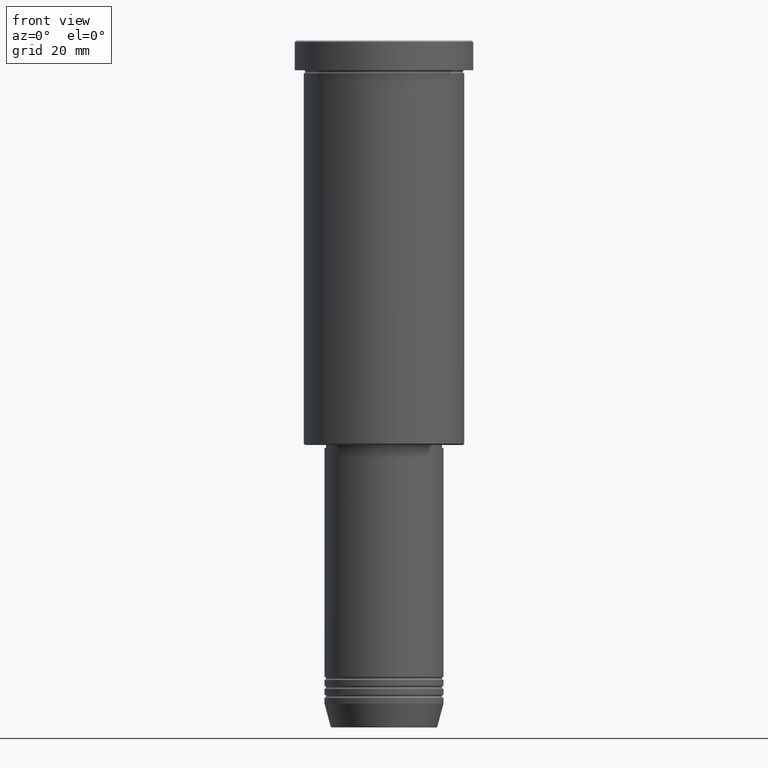
[diagram: clean part render]
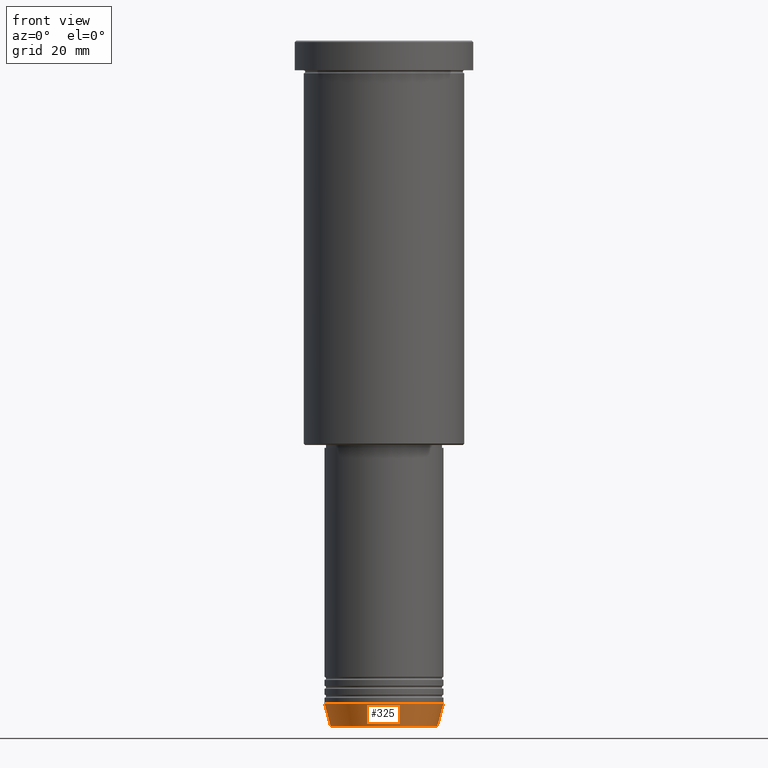
[diagram: same view with one face highlighted and labeled with its STEP entity id]
A machine part, front view. The second image highlights one B-rep face of the part: STEP entity #325.
In plain terms, the highlighted conical surface has half-angle 15 deg.
Its self-contained STEP definition (entity closure, byte-faithful):
#36 = CARTESIAN_POINT ( 'NONE',  ( 0.000000000000000000, 0.000000000000000000, -223.0000000000000000 ) ) ;
#42 = DIRECTION ( 'NONE',  ( -0.000000000000000000, -0.000000000000000000, 1.000000000000000000 ) ) ;
#61 = ORIENTED_EDGE ( 'NONE', *, *, #965, .T. ) ;
#128 = DIRECTION ( 'NONE',  ( 1.000000000000000000, 0.000000000000000000, 0.000000000000000000 ) ) ;
#147 = CIRCLE ( 'NONE', #336, 17.95570587970607690 ) ;
#193 = EDGE_CURVE ( 'NONE', #377, #1181, #750, .T. ) ;
#230 = CARTESIAN_POINT ( 'NONE',  ( 0.000000000000000000, 0.000000000000000000, -230.6294095225512706 ) ) ;
#269 = VERTEX_POINT ( 'NONE', #848 ) ;
#325 = ADVANCED_FACE ( 'NONE', ( #328 ), #407, .T. ) ;
#328 = FACE_OUTER_BOUND ( 'NONE', #946, .T. ) ;
#330 = CARTESIAN_POINT ( 'NONE',  ( 20.00000000000000000, 0.000000000000000000, -223.0000000000000000 ) ) ;
#336 = AXIS2_PLACEMENT_3D ( 'NONE', #230, #948, #836 ) ;
#346 = CARTESIAN_POINT ( 'NONE',  ( -17.95570587970607690, 2.324116685748020977E-15, -230.6294095225512706 ) ) ;
#369 = CARTESIAN_POINT ( 'NONE',  ( 20.00000000000000000, 0.000000000000000000, -223.0000000000000000 ) ) ;
#377 = VERTEX_POINT ( 'NONE', #346 ) ;
#399 = ORIENTED_EDGE ( 'NONE', *, *, #193, .F. ) ;
#407 = CONICAL_SURFACE ( 'NONE', #1032, 20.00000000000000000, 0.2617993877991500740 ) ;
#435 = VERTEX_POINT ( 'NONE', #330 ) ;
#501 = CIRCLE ( 'NONE', #981, 20.00000000000000000 ) ;
#514 = LINE ( 'NONE', #369, #639 ) ;
#538 = VECTOR ( 'NONE', #834, 1000.000000000000000 ) ;
#561 = CARTESIAN_POINT ( 'NONE',  ( -20.00000000000000000, 2.449293598294706513E-15, -223.0000000000000000 ) ) ;
#574 = CARTESIAN_POINT ( 'NONE',  ( 0.000000000000000000, 0.000000000000000000, -223.0000000000000000 ) ) ;
#590 = DIRECTION ( 'NONE',  ( 1.000000000000000000, 0.000000000000000000, 0.000000000000000000 ) ) ;
#615 = ORIENTED_EDGE ( 'NONE', *, *, #1162, .T. ) ;
#639 = VECTOR ( 'NONE', #1179, 1000.000000000000000 ) ;
#750 = LINE ( 'NONE', #561, #538 ) ;
#753 = CARTESIAN_POINT ( 'NONE',  ( -20.00000000000000000, 2.449293598294706513E-15, -223.0000000000000000 ) ) ;
#834 = DIRECTION ( 'NONE',  ( -0.2588190451025213501, 3.169619151431772337E-17, 0.9659258262890680902 ) ) ;
#836 = DIRECTION ( 'NONE',  ( 1.000000000000000000, 0.000000000000000000, 0.000000000000000000 ) ) ;
#848 = CARTESIAN_POINT ( 'NONE',  ( 17.95570587970607690, 0.000000000000000000, -230.6294095225512706 ) ) ;
#871 = DIRECTION ( 'NONE',  ( -0.000000000000000000, -0.000000000000000000, 1.000000000000000000 ) ) ;
#946 = EDGE_LOOP ( 'NONE', ( #399, #615, #61, #1112 ) ) ;
#948 = DIRECTION ( 'NONE',  ( -0.000000000000000000, -0.000000000000000000, 1.000000000000000000 ) ) ;
#965 = EDGE_CURVE ( 'NONE', #269, #435, #514, .T. ) ;
#981 = AXIS2_PLACEMENT_3D ( 'NONE', #574, #42, #128 ) ;
#1032 = AXIS2_PLACEMENT_3D ( 'NONE', #36, #871, #590 ) ;
#1112 = ORIENTED_EDGE ( 'NONE', *, *, #1124, .F. ) ;
#1124 = EDGE_CURVE ( 'NONE', #1181, #435, #501, .T. ) ;
#1162 = EDGE_CURVE ( 'NONE', #377, #269, #147, .T. ) ;
#1179 = DIRECTION ( 'NONE',  ( 0.2588190451025213501, 0.000000000000000000, 0.9659258262890680902 ) ) ;
#1181 = VERTEX_POINT ( 'NONE', #753 ) ;